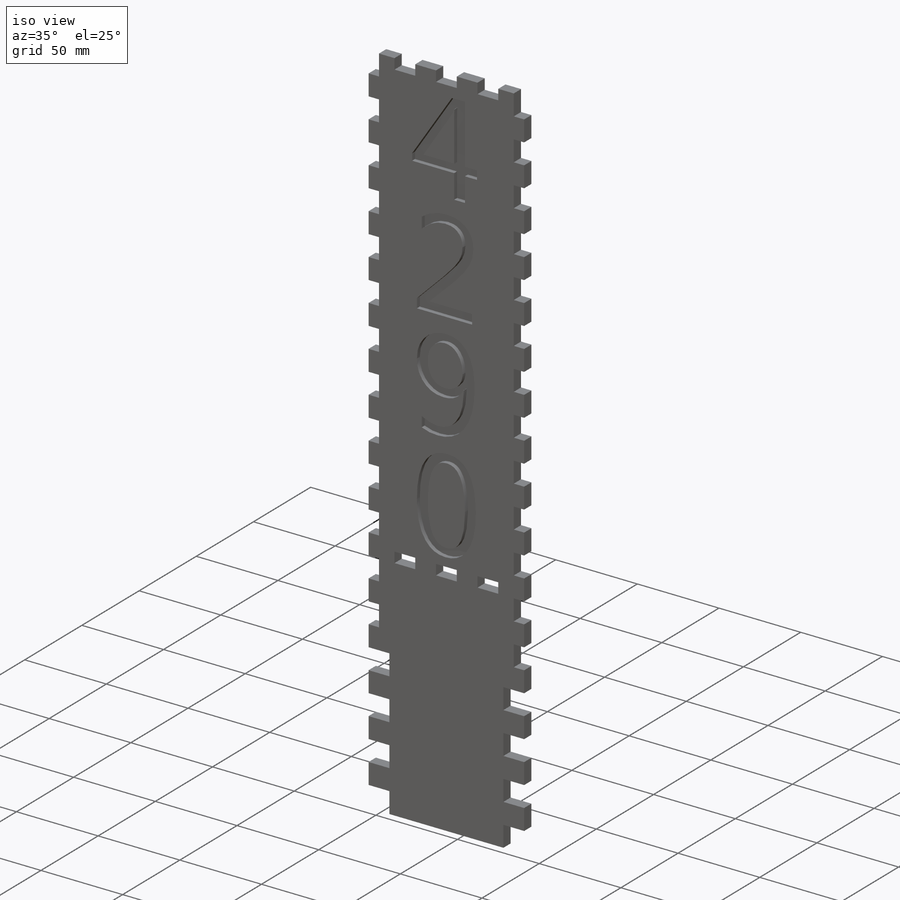
[diagram: iso view]
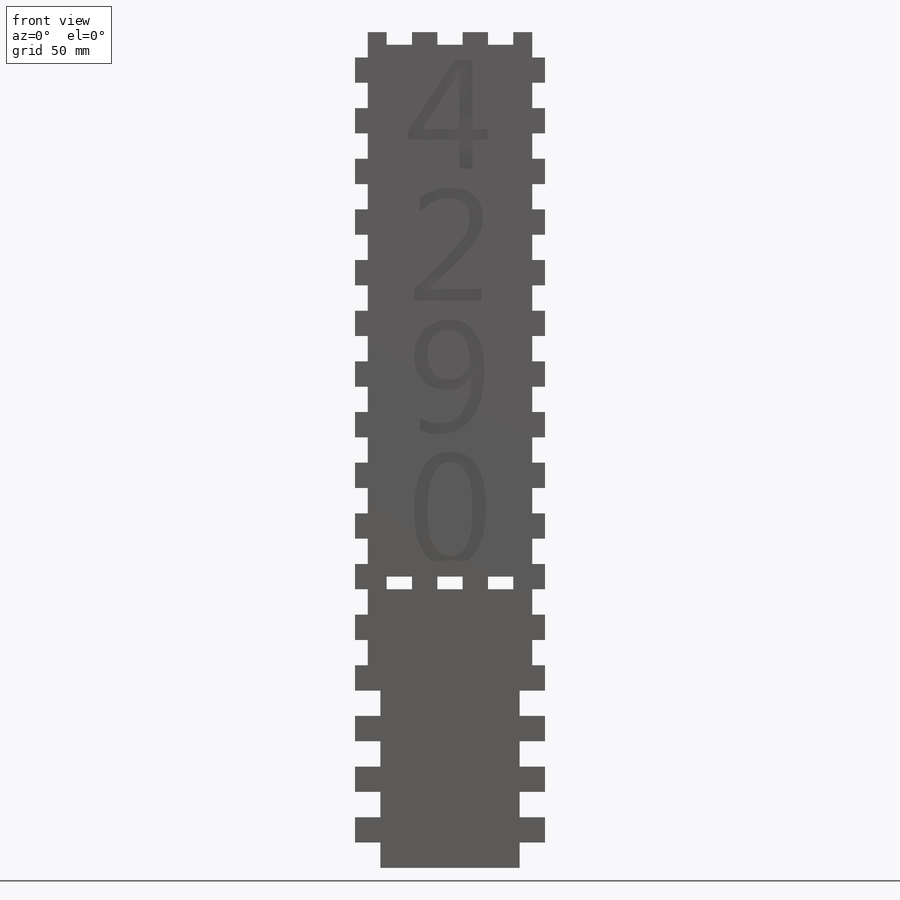
[diagram: front view]
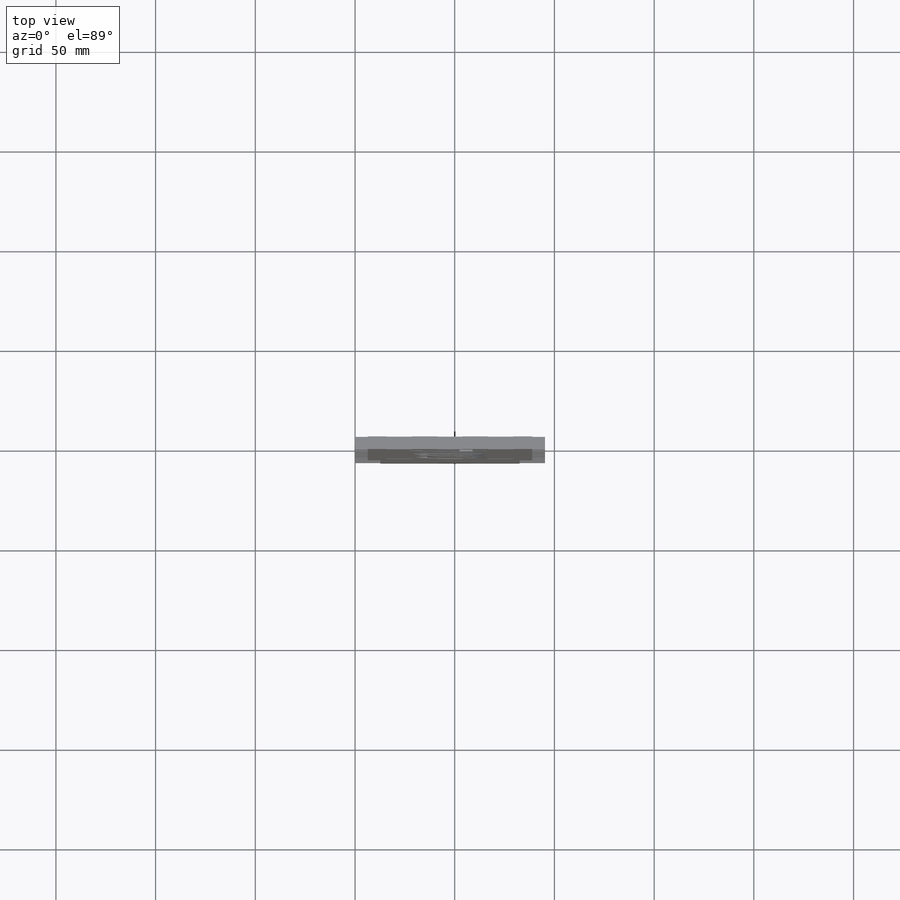
[diagram: top view]
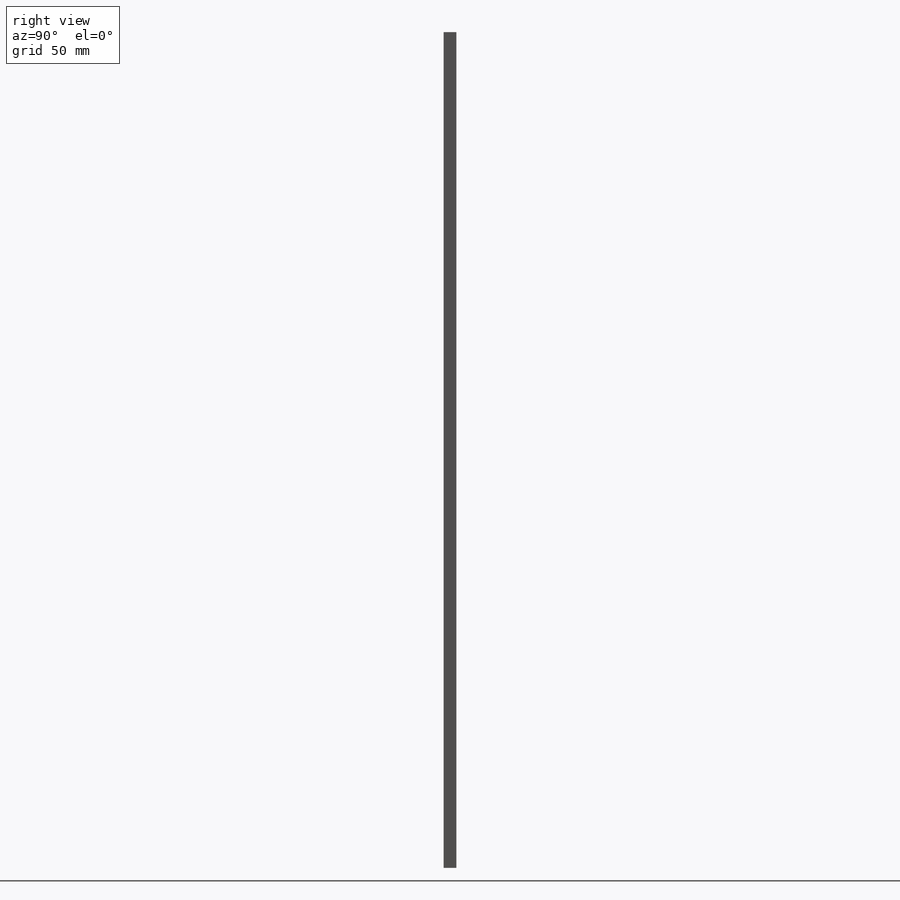
[diagram: right view]
SOLIDWORKS PART (.sldprt)
format: sldprt  version: not decoded by parser v0  size: 619,008 bytes
history: native  units: mm
features: sketch x6, cut_extrude x5, pattern_linear x3, material x1, extrude x1 (+13 scaffold rows collapsed)
feature tree (29):
  scaffold x13  (default folders/planes/origin — collapsed)
  material  "Pine"
  sketch  "Sketch2"  dims[D1=95.25mm D2=419.1mm]
  extrude  "Boss-Extrude1"  Depth=6.35mm
  sketch  "Sketch3"  dims[D1=6.35mm D2=12.7mm]
  cut_extrude  "Cut-Extrude1"  [1 undecoded]
  pattern_linear  "LPattern1"  Count1=17 Count2=1 Spacing1=25.4mm Spacing2=2.54mm
  sketch  "Sketch4"  dims[D1=12.7mm D2=6.35mm D3=12.7mm D4=12.7mm]
  cut_extrude  "Cut-Extrude2"  [1 undecoded]
  sketch  "Sketch5"
  cut_extrude  "Cut-Extrude3"  [1 undecoded]
  pattern_linear  "LPattern2"  Count1=4 Count2=1 Spacing1=25.4mm Spacing2=2.54mm
  sketch  "Sketch6"  dims[D1=12.7mm D2=6.35mm]
  cut_extrude  "Cut-Extrude4"  [1 undecoded]
  pattern_linear  "LPattern3"  Count1=2 Count2=2 Spacing1=25.4mm Spacing2=25.4mm
  sketch  "Sketch7"  dims[D1=25.908mm D2=350.52mm]
  cut_extrude  "Cut-Extrude5"  Depth=2.54mm
decode coverage: 10 of 15 modeling features carry decoded parameters
note: 4 parameter values undecoded
summary: no parameter record found for 4 features
note: suppression state not decoded; provenance and decode notes live in map.json
